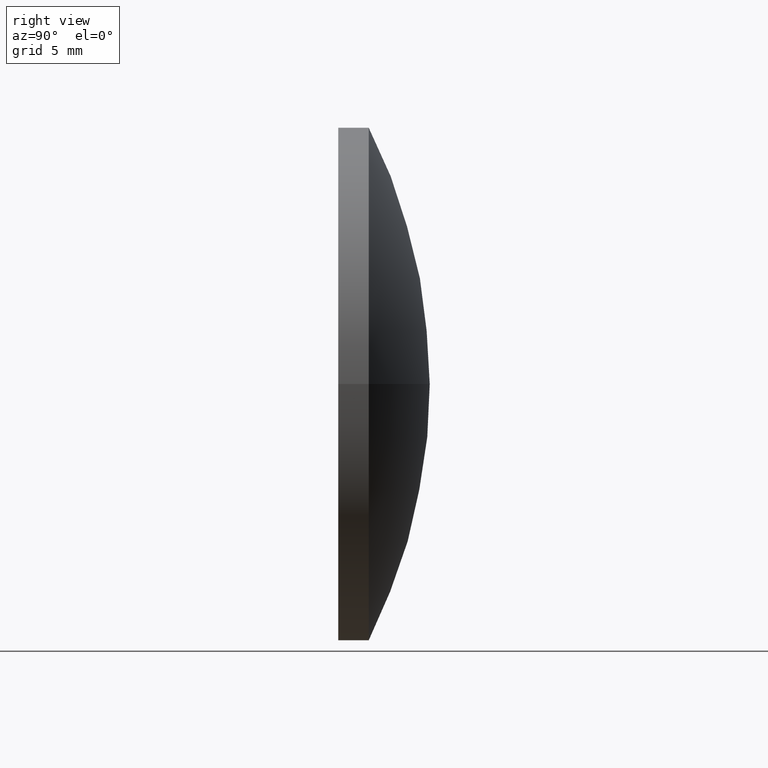
[diagram: clean part render]
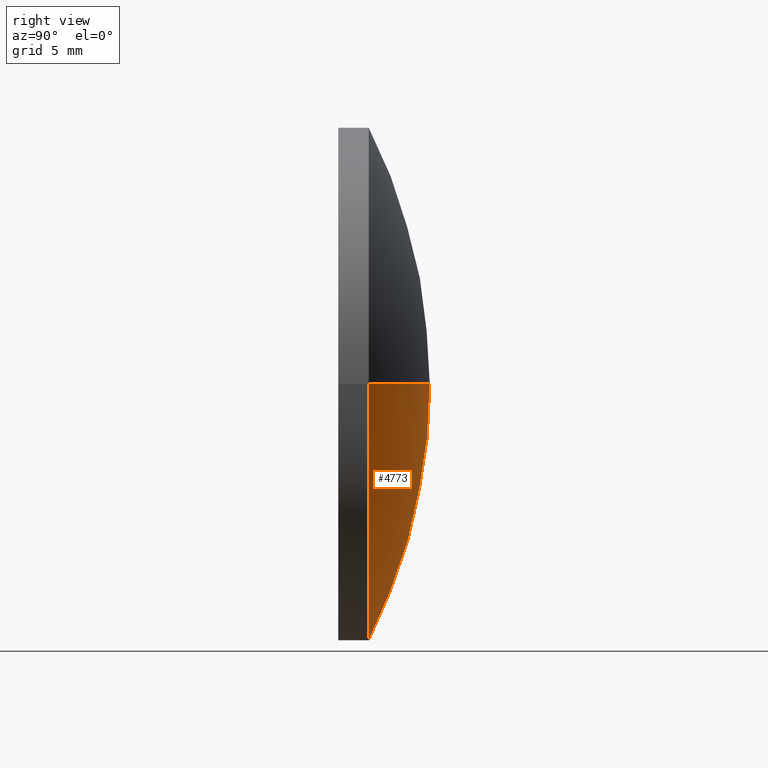
[diagram: same view with one face highlighted and labeled with its STEP entity id]
A machine part, right view. The second image highlights one B-rep face of the part: STEP entity #4773.
In plain terms, the highlighted spherical surface has radius 37.4903 mm.
Its self-contained STEP definition (entity closure, byte-faithful):
#834 = EDGE_CURVE ( 'NONE', #2733, #5668, #11599, .T. ) ;
#1017 = CARTESIAN_POINT ( 'NONE',  ( -16.85000000000001200, 2.000000000000191800, 2.063529856563290600E-015 ) ) ;
#1303 = DIRECTION ( 'NONE',  ( -1.000000000000000000, 0.0000000000000000000, 0.0000000000000000000 ) ) ;
#1694 = DIRECTION ( 'NONE',  ( -5.836103876533815000E-015, -1.000000000000000000, -0.0000000000000000000 ) ) ;
#1814 = AXIS2_PLACEMENT_3D ( 'NONE', #6427, #8338, #4640 ) ;
#1818 = CARTESIAN_POINT ( 'NONE',  ( 16.84999999999999100, 1.999999999999994900, 0.0000000000000000000 ) ) ;
#2257 = DIRECTION ( 'NONE',  ( 0.0000000000000000000, 0.0000000000000000000, -1.000000000000000000 ) ) ;
#2580 = CARTESIAN_POINT ( 'NONE',  ( 1.167220775306751800E-014, -31.49031249999995200, 0.0000000000000000000 ) ) ;
#2696 = AXIS2_PLACEMENT_3D ( 'NONE', #10851, #2257, #1303 ) ;
#2704 = CARTESIAN_POINT ( 'NONE',  ( -1.167220775306714700E-014, 2.000000000000093300, 0.0000000000000000000 ) ) ;
#2713 = CIRCLE ( 'NONE', #2696, 37.49031249999994500 ) ;
#2733 = VERTEX_POINT ( 'NONE', #1017 ) ;
#3139 = CARTESIAN_POINT ( 'NONE',  ( 2.327651854268892700E-013, 5.999999999999991100, 0.0000000000000000000 ) ) ;
#3567 = DIRECTION ( 'NONE',  ( 1.224646799147353200E-016, -7.147165931888596700E-031, 1.000000000000000000 ) ) ;
#3751 = ORIENTED_EDGE ( 'NONE', *, *, #834, .F. ) ;
#3974 = VERTEX_POINT ( 'NONE', #3139 ) ;
#4437 = CIRCLE ( 'NONE', #11903, 37.49031249999994500 ) ;
#4640 = DIRECTION ( 'NONE',  ( 1.000000000000000000, -5.922719500538483000E-015, 0.0000000000000000000 ) ) ;
#4773 = ADVANCED_FACE ( 'NONE', ( #12551 ), #9341, .T. ) ;
#5049 = AXIS2_PLACEMENT_3D ( 'NONE', #2704, #1694, #11422 ) ;
#5277 = EDGE_CURVE ( 'NONE', #3974, #2733, #4437, .T. ) ;
#5668 = VERTEX_POINT ( 'NONE', #1818 ) ;
#6427 = CARTESIAN_POINT ( 'NONE',  ( 1.167220775306751800E-014, -31.49031249999995200, 0.0000000000000000000 ) ) ;
#8338 = DIRECTION ( 'NONE',  ( -0.0000000000000000000, 0.0000000000000000000, 1.000000000000000000 ) ) ;
#8558 = ORIENTED_EDGE ( 'NONE', *, *, #12161, .T. ) ;
#9341 = SPHERICAL_SURFACE ( 'NONE', #1814, 37.49031249999994500 ) ;
#10166 = EDGE_LOOP ( 'NONE', ( #11070, #8558, #3751 ) ) ;
#10352 = DIRECTION ( 'NONE',  ( 1.000000000000000000, 0.0000000000000000000, -1.224646799147353000E-016 ) ) ;
#10851 = CARTESIAN_POINT ( 'NONE',  ( 1.167220775306751800E-014, -31.49031249999995200, 0.0000000000000000000 ) ) ;
#11070 = ORIENTED_EDGE ( 'NONE', *, *, #5277, .F. ) ;
#11422 = DIRECTION ( 'NONE',  ( 1.000000000000000000, -5.842466306331382200E-015, 0.0000000000000000000 ) ) ;
#11599 = CIRCLE ( 'NONE', #5049, 16.85000000000000100 ) ;
#11903 = AXIS2_PLACEMENT_3D ( 'NONE', #2580, #3567, #10352 ) ;
#12161 = EDGE_CURVE ( 'NONE', #3974, #5668, #2713, .T. ) ;
#12551 = FACE_OUTER_BOUND ( 'NONE', #10166, .T. ) ;